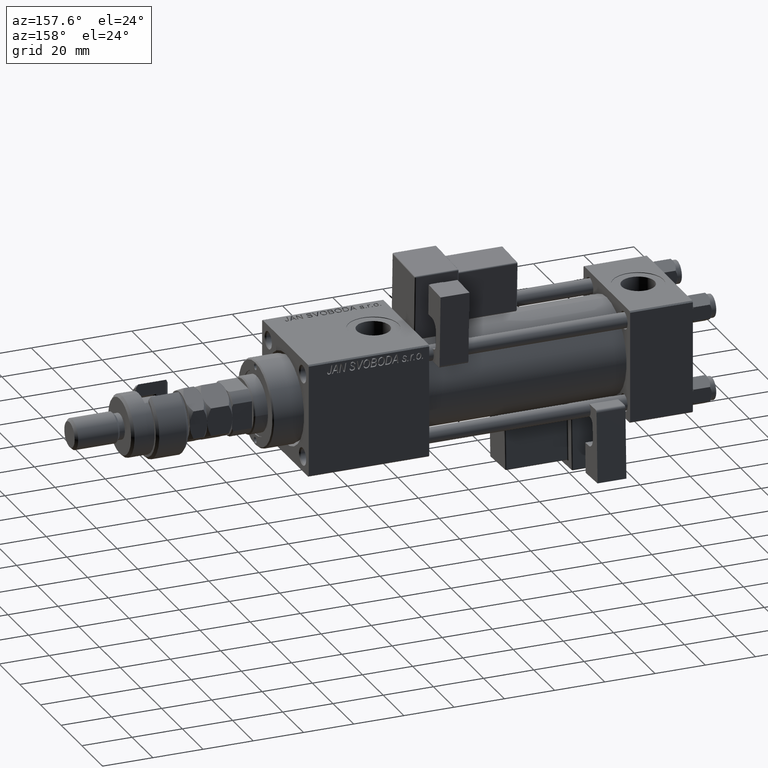
[diagram: clean part render]
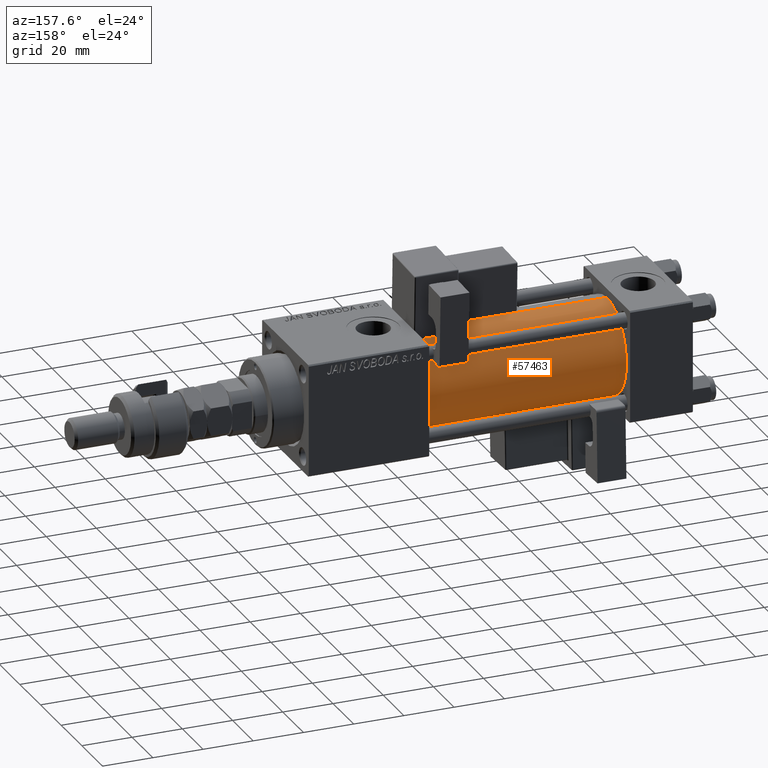
[diagram: same view with one face highlighted and labeled with its STEP entity id]
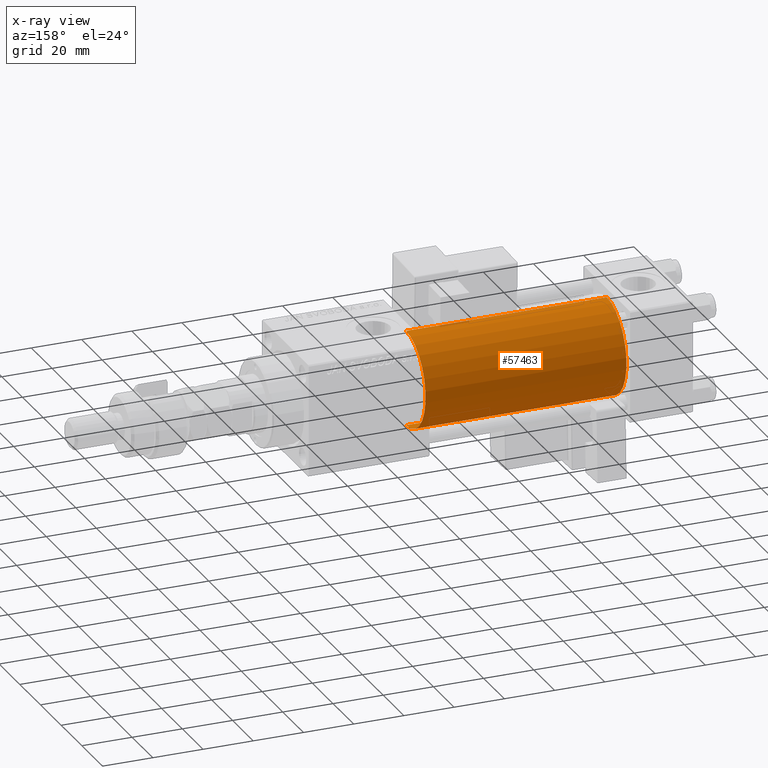
[diagram: x-ray of the same camera — body ghosted, the highlighted face saturated]
A machine part, auxiliary view. The second image highlights one B-rep face of the part: STEP entity #57463.
The next image is the same camera in x-ray: the body ghosted, the highlighted face saturated — about 0% of this face is hidden behind the body in this view.
In plain terms, the highlighted cylindrical surface (partial cylindrical patch) has radius 19 mm, axis along (-1, -0, -0).
Its self-contained STEP definition (entity closure, byte-faithful):
#1218 = ORIENTED_EDGE ( 'NONE', *, *, #22965, .F. ) ;
#3368 = LINE ( 'NONE', #21056, #48912 ) ;
#7497 = EDGE_CURVE ( 'NONE', #9217, #29205, #15210, .T. ) ;
#7712 = VERTEX_POINT ( 'NONE', #8411 ) ;
#8411 = CARTESIAN_POINT ( 'NONE',  ( 24.99999999999999289, -2.602085213965210642E-15, 19.00000000000000000 ) ) ;
#9009 = DIRECTION ( 'NONE',  ( -1.000000000000000000, -0.000000000000000000, -0.000000000000000000 ) ) ;
#9148 = VERTEX_POINT ( 'NONE', #14933 ) ;
#9217 = VERTEX_POINT ( 'NONE', #29716 ) ;
#9431 = AXIS2_PLACEMENT_3D ( 'NONE', #24835, #51263, #11197 ) ;
#11197 = DIRECTION ( 'NONE',  ( 0.000000000000000000, 0.000000000000000000, 1.000000000000000000 ) ) ;
#11418 = DIRECTION ( 'NONE',  ( -1.000000000000000000, -0.000000000000000000, -0.000000000000000000 ) ) ;
#13768 = EDGE_LOOP ( 'NONE', ( #23853, #41321, #24498, #1218 ) ) ;
#14933 = CARTESIAN_POINT ( 'NONE',  ( 24.99999999999999289, -2.752562955852396712E-16, -19.00000000000000000 ) ) ;
#15210 = CIRCLE ( 'NONE', #48584, 19.00000000000000000 ) ;
#16843 = LINE ( 'NONE', #48803, #26882 ) ;
#20770 = DIRECTION ( 'NONE',  ( -1.000000000000000000, -0.000000000000000000, -0.000000000000000000 ) ) ;
#21056 = CARTESIAN_POINT ( 'NONE',  ( 105.0000000000000142, -2.602085213965210642E-15, 19.00000000000000000 ) ) ;
#22965 = EDGE_CURVE ( 'NONE', #29205, #7712, #3368, .T. ) ;
#23853 = ORIENTED_EDGE ( 'NONE', *, *, #7497, .F. ) ;
#24498 = ORIENTED_EDGE ( 'NONE', *, *, #48315, .T. ) ;
#24835 = CARTESIAN_POINT ( 'NONE',  ( 24.99999999999999289, -2.602085213965210642E-15, 0.000000000000000000 ) ) ;
#26882 = VECTOR ( 'NONE', #9009, 1000.000000000000000 ) ;
#27518 = CARTESIAN_POINT ( 'NONE',  ( 105.0000000000000142, -2.602085213965210642E-15, 19.00000000000000000 ) ) ;
#27968 = EDGE_CURVE ( 'NONE', #9217, #9148, #16843, .T. ) ;
#28855 = CARTESIAN_POINT ( 'NONE',  ( 105.0000000000000142, -2.602085213965210642E-15, 0.000000000000000000 ) ) ;
#29205 = VERTEX_POINT ( 'NONE', #27518 ) ;
#29716 = CARTESIAN_POINT ( 'NONE',  ( 105.0000000000000142, -2.752562955852396712E-16, -19.00000000000000000 ) ) ;
#32628 = FACE_OUTER_BOUND ( 'NONE', #13768, .T. ) ;
#33481 = CYLINDRICAL_SURFACE ( 'NONE', #38539, 19.00000000000000000 ) ;
#37253 = CIRCLE ( 'NONE', #9431, 19.00000000000000000 ) ;
#38539 = AXIS2_PLACEMENT_3D ( 'NONE', #28855, #11418, #55007 ) ;
#41321 = ORIENTED_EDGE ( 'NONE', *, *, #27968, .T. ) ;
#41837 = DIRECTION ( 'NONE',  ( 1.000000000000000000, 0.000000000000000000, 0.000000000000000000 ) ) ;
#48315 = EDGE_CURVE ( 'NONE', #9148, #7712, #37253, .T. ) ;
#48584 = AXIS2_PLACEMENT_3D ( 'NONE', #50844, #41837, #50272 ) ;
#48803 = CARTESIAN_POINT ( 'NONE',  ( 105.0000000000000142, -2.752562955852396712E-16, -19.00000000000000000 ) ) ;
#48912 = VECTOR ( 'NONE', #20770, 1000.000000000000000 ) ;
#50272 = DIRECTION ( 'NONE',  ( 0.000000000000000000, 0.000000000000000000, -1.000000000000000000 ) ) ;
#50844 = CARTESIAN_POINT ( 'NONE',  ( 105.0000000000000142, -2.602085213965210642E-15, 0.000000000000000000 ) ) ;
#51263 = DIRECTION ( 'NONE',  ( 1.000000000000000000, -0.000000000000000000, 0.000000000000000000 ) ) ;
#55007 = DIRECTION ( 'NONE',  ( 0.000000000000000000, 0.000000000000000000, 1.000000000000000000 ) ) ;
#57463 = ADVANCED_FACE ( 'NONE', ( #32628 ), #33481, .T. ) ;